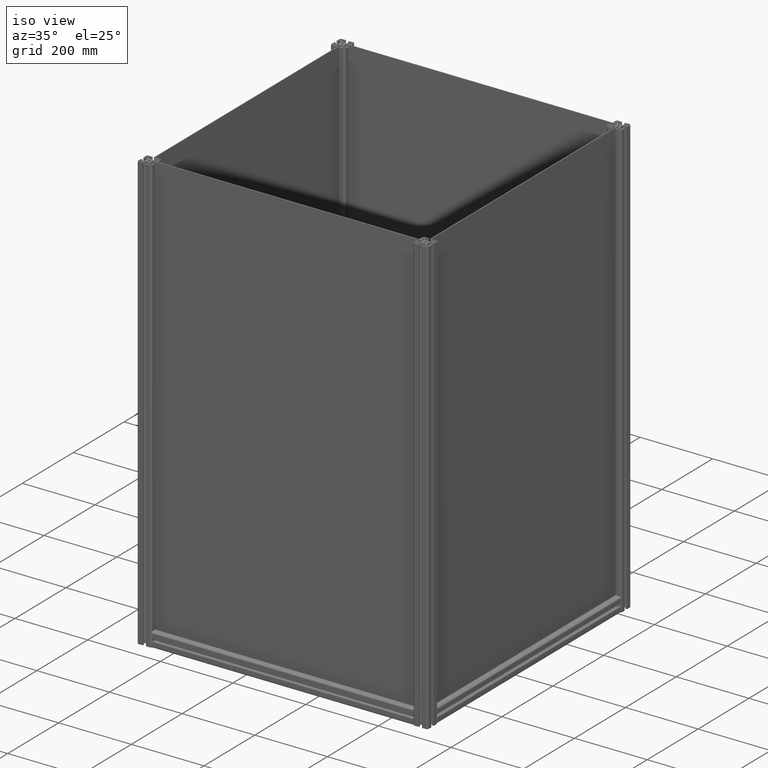
[diagram: clean part render]
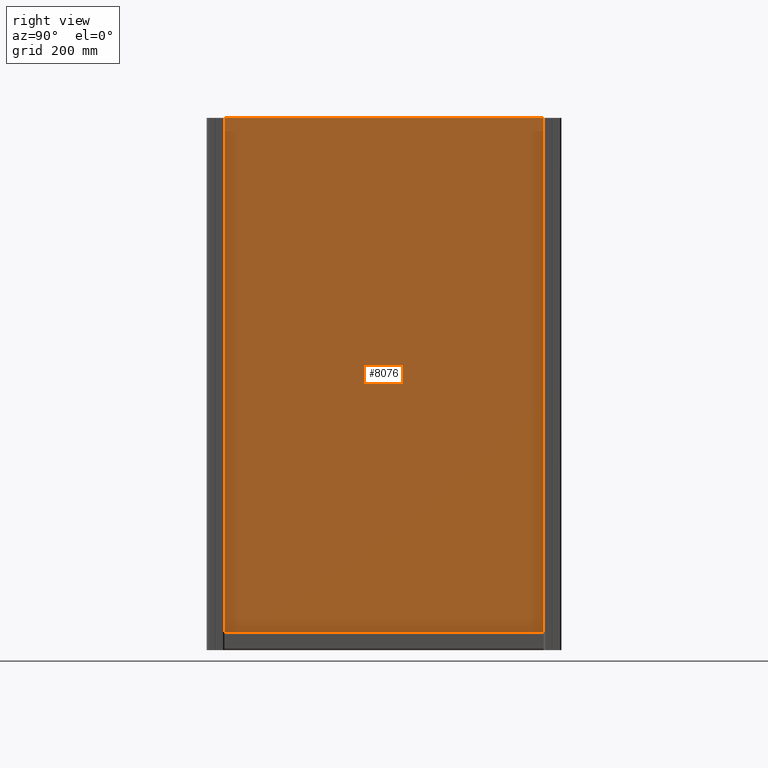
[diagram: tour spotlight — one face highlighted and labeled with its STEP entity id]
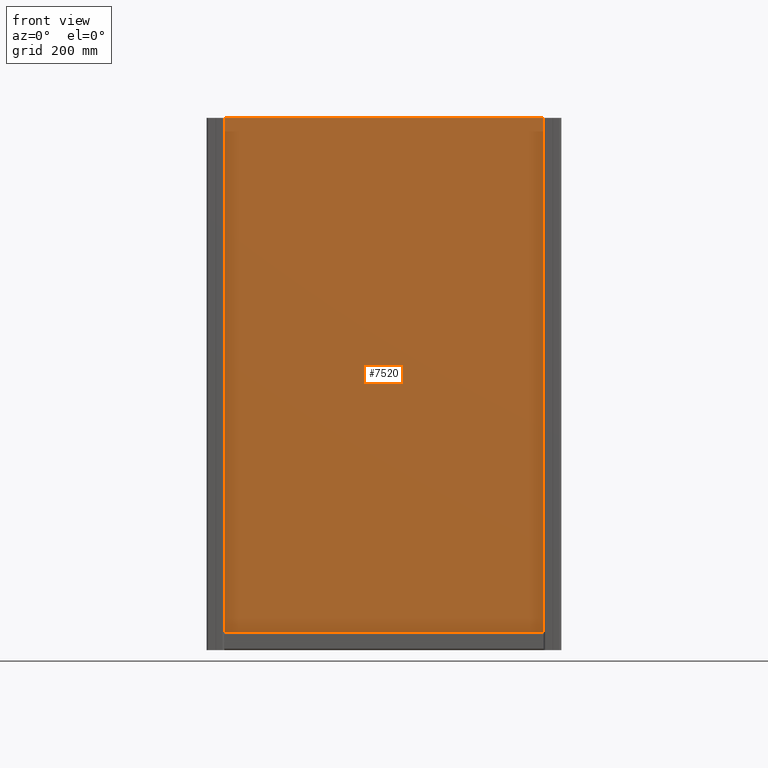
[diagram: tour spotlight — one face highlighted and labeled with its STEP entity id]
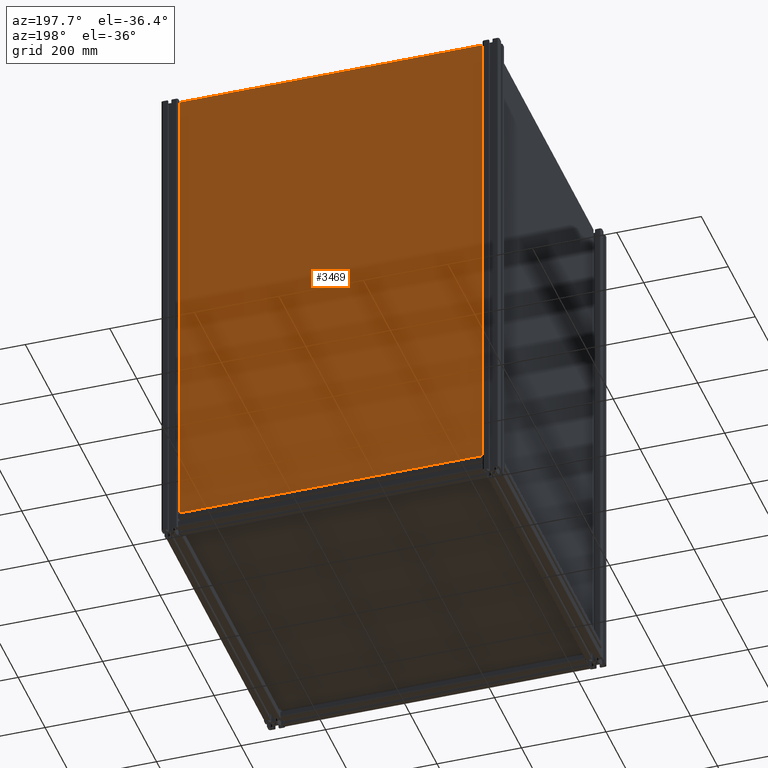
[diagram: tour spotlight — one face highlighted and labeled with its STEP entity id]
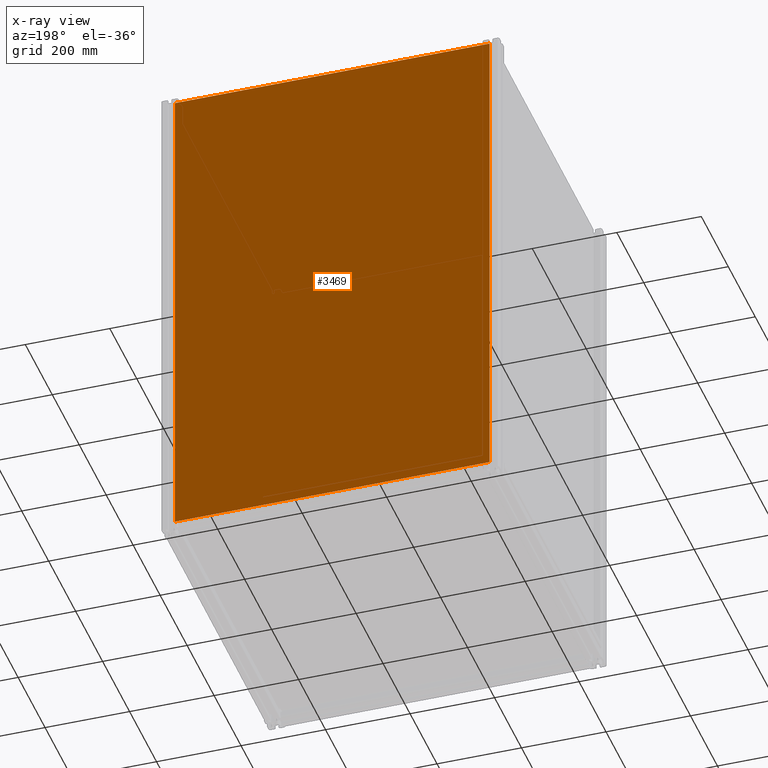
[diagram: x-ray of the same camera — body ghosted, this tour face saturated]
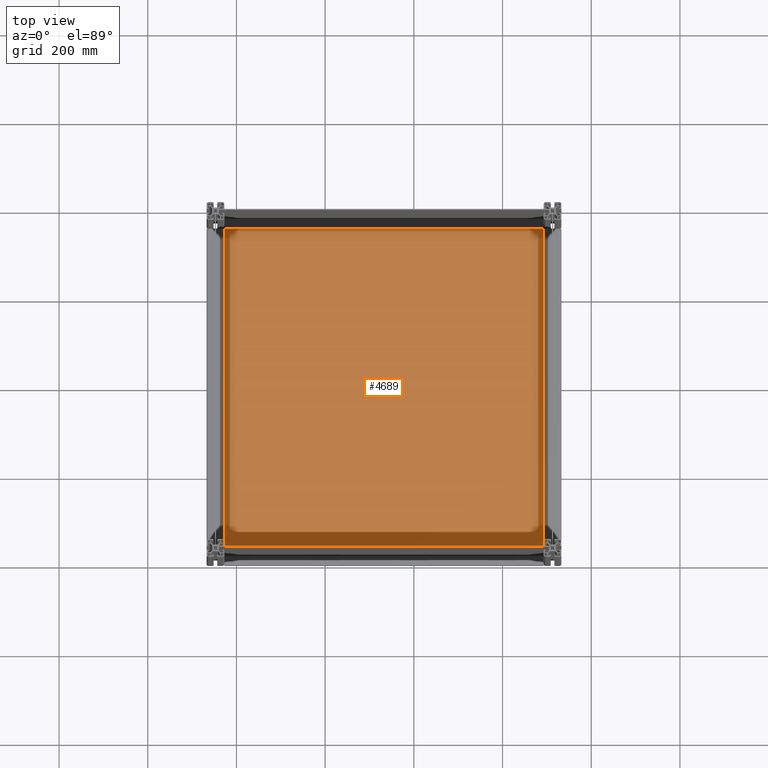
[diagram: tour spotlight — one face highlighted and labeled with its STEP entity id]
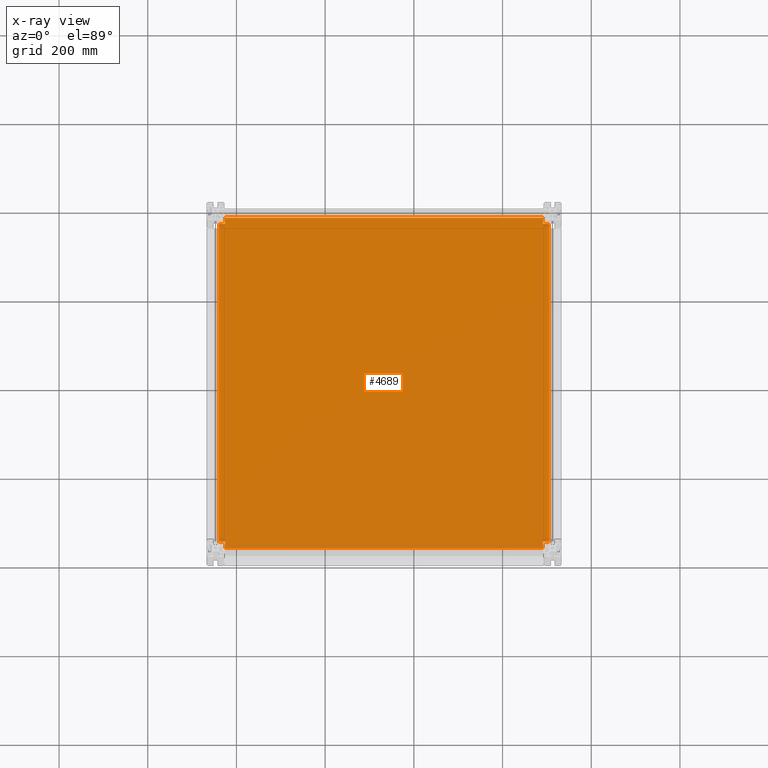
[diagram: x-ray of the same camera — body ghosted, this tour face saturated]
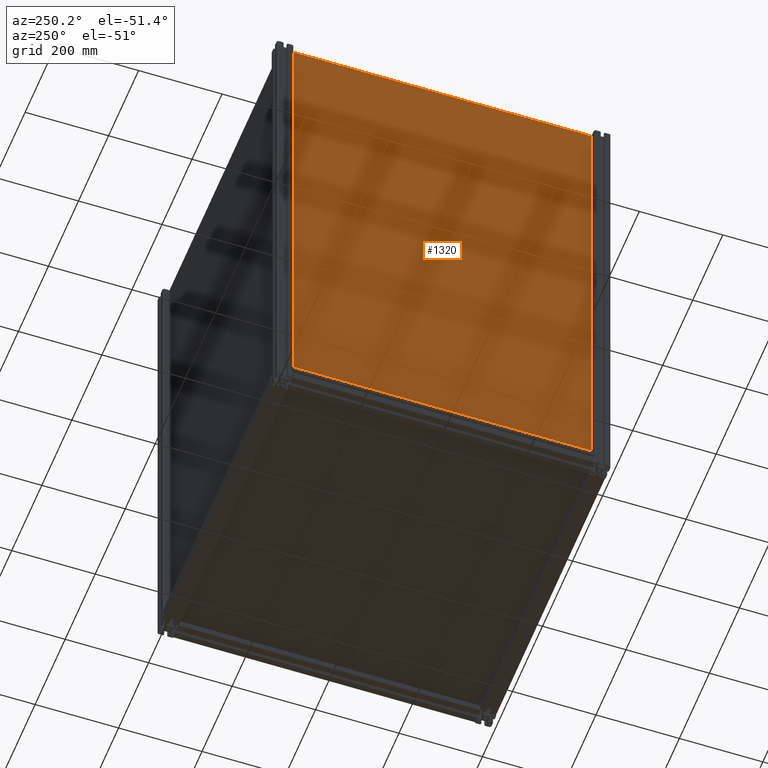
[diagram: tour spotlight — one face highlighted and labeled with its STEP entity id]
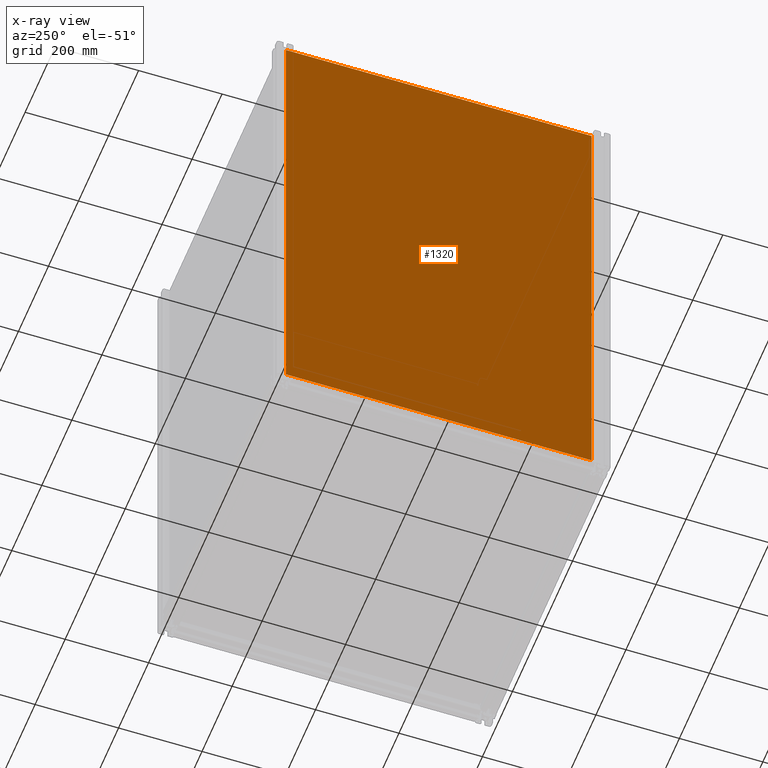
[diagram: x-ray of the same camera — body ghosted, this tour face saturated]
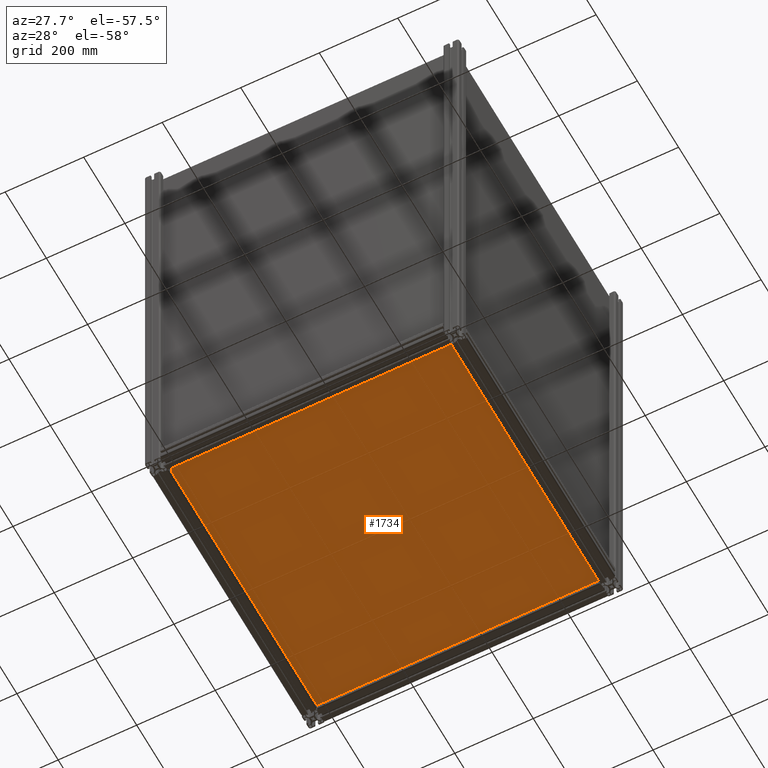
[diagram: tour spotlight — one face highlighted and labeled with its STEP entity id]
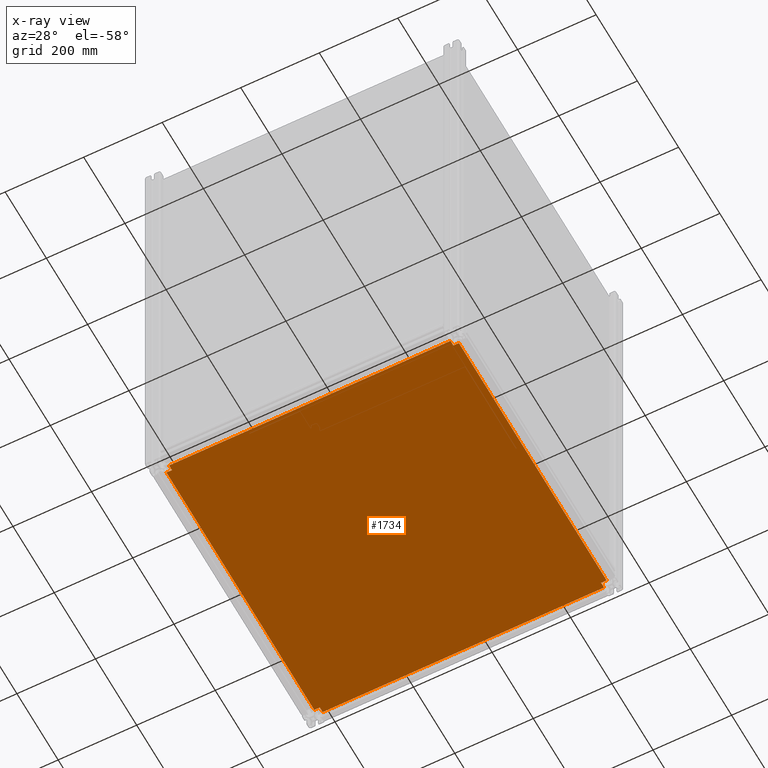
[diagram: x-ray of the same camera — body ghosted, this tour face saturated]
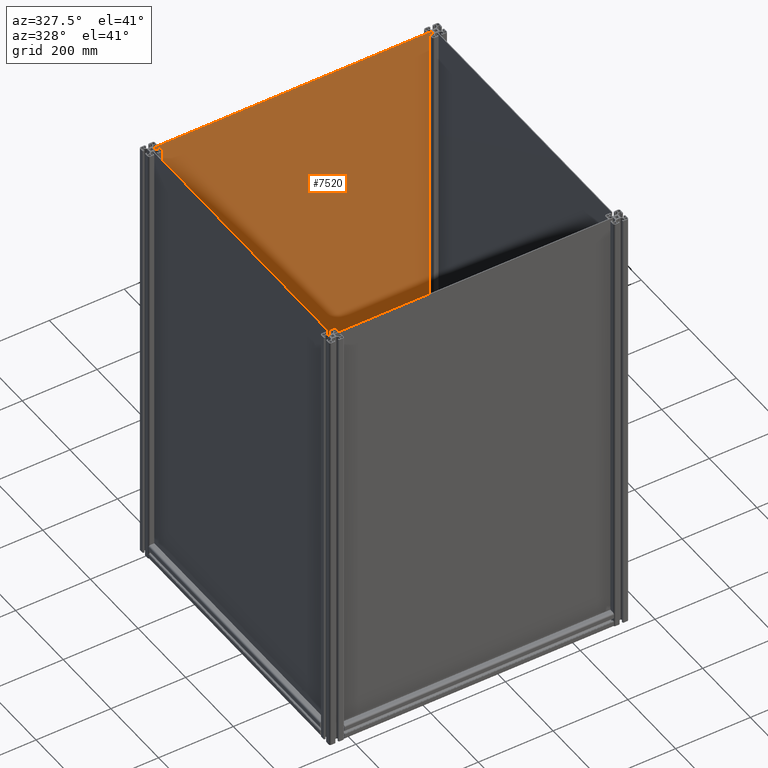
[diagram: tour spotlight — one face highlighted and labeled with its STEP entity id]
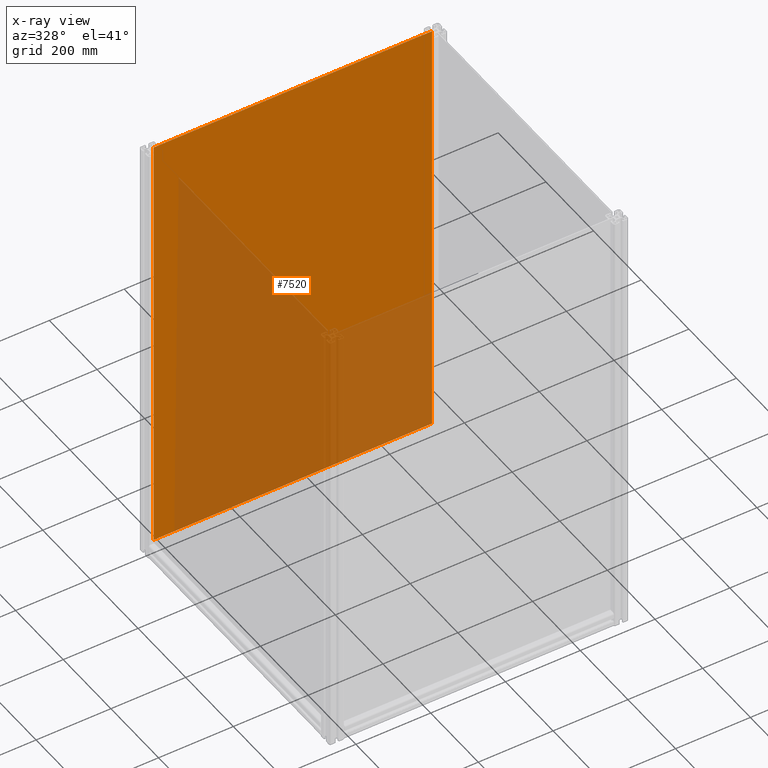
[diagram: x-ray of the same camera — body ghosted, this tour face saturated]
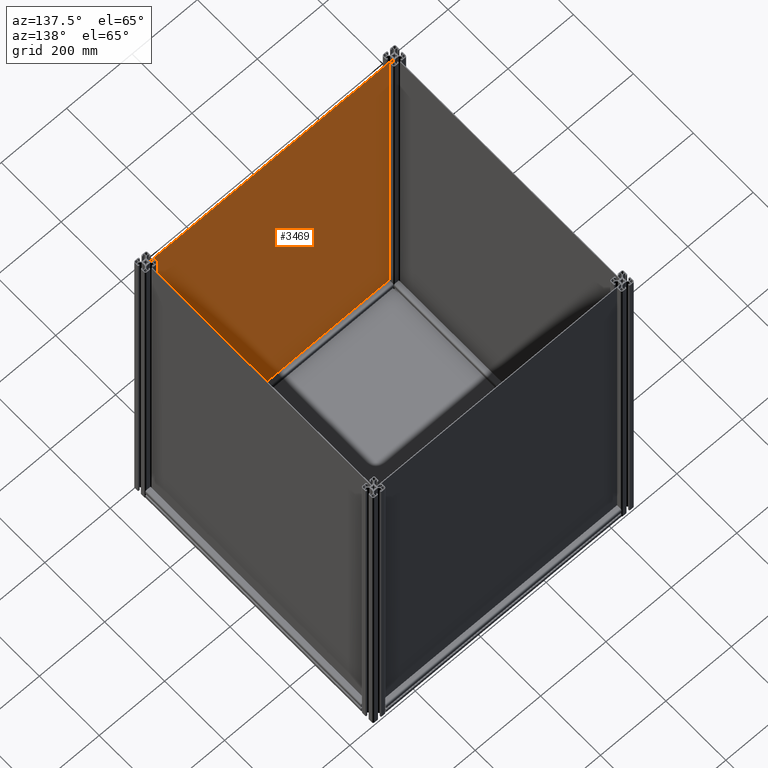
[diagram: tour spotlight — one face highlighted and labeled with its STEP entity id]
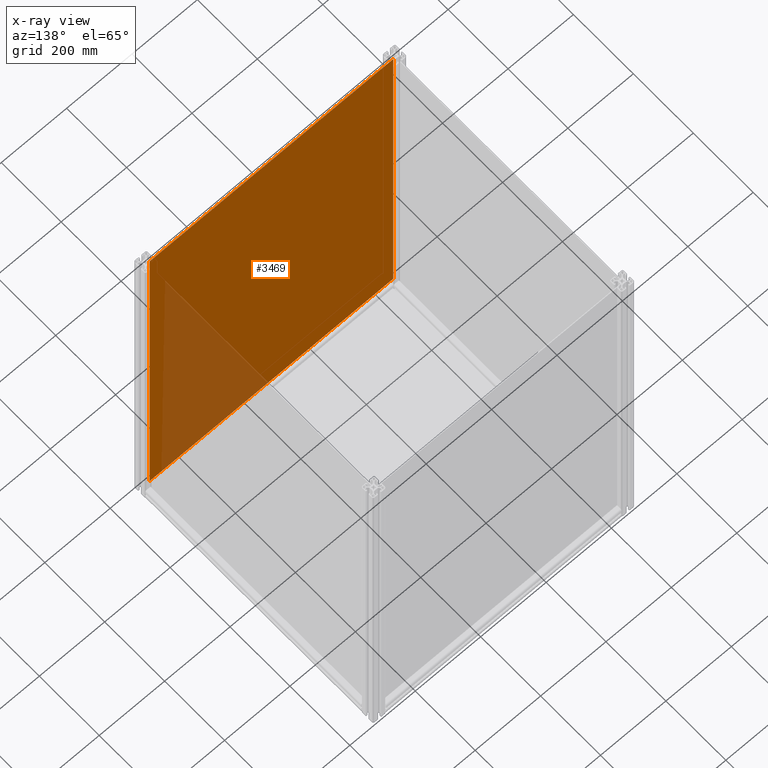
[diagram: x-ray of the same camera — body ghosted, this tour face saturated]
A machine part: a face-by-face anatomy tour. The part has 1230 B-rep faces; the first image is the clean iso view, then the 8 largest visible faces are spotlighted one at a time (largest first), each with its STEP entity span.

Face 1 — right view, entity #8076. In plain terms, the highlighted planar face has unit normal (1, 0, 0).
Definition (entity closure, byte-faithful):
#271 = DIRECTION ( 'NONE',  ( -1.420449110318777311E-16, 1.000000000000000000, -0.000000000000000000 ) ) ;
#549 = VERTEX_POINT ( 'NONE', #7452 ) ;
#635 = EDGE_CURVE ( 'NONE', #3015, #1391, #6547, .T. ) ;
#698 = DIRECTION ( 'NONE',  ( -1.000000000000000000, 0.000000000000000000, 0.000000000000000000 ) ) ;
#891 = DIRECTION ( 'NONE',  ( 0.000000000000000000, 0.000000000000000000, 1.000000000000000000 ) ) ;
#1391 = VERTEX_POINT ( 'NONE', #1394 ) ;
#1394 = CARTESIAN_POINT ( 'NONE',  ( -600.7269624573376632, -914.5269624573375040, 0.000000000000000000 ) ) ;
#1456 = CARTESIAN_POINT ( 'NONE',  ( 131.6730375426620299, 257.8730375426625301, 0.000000000000000000 ) ) ;
#1795 = EDGE_CURVE ( 'NONE', #9516, #3015, #10197, .T. ) ;
#1970 = CARTESIAN_POINT ( 'NONE',  ( -600.7269624573378906, 257.8730375426625301, 0.000000000000000000 ) ) ;
#2233 = CARTESIAN_POINT ( 'NONE',  ( 0.000000000000000000, 0.000000000000000000, 0.000000000000000000 ) ) ;
#2479 = VECTOR ( 'NONE', #698, 1000.000000000000000 ) ;
#2832 = VECTOR ( 'NONE', #271, 1000.000000000000000 ) ;
#3015 = VERTEX_POINT ( 'NONE', #1970 ) ;
#3853 = DIRECTION ( 'NONE',  ( 1.000000000000000000, 0.000000000000000000, 0.000000000000000000 ) ) ;
#4068 = ORIENTED_EDGE ( 'NONE', *, *, #5839, .T. ) ;
#4228 = AXIS2_PLACEMENT_3D ( 'NONE', #2233, #891, #10353 ) ;
#4927 = ORIENTED_EDGE ( 'NONE', *, *, #635, .T. ) ;
#5795 = CARTESIAN_POINT ( 'NONE',  ( 131.6730375426620299, 257.8730375426625301, 0.000000000000000000 ) ) ;
#5839 = EDGE_CURVE ( 'NONE', #1391, #549, #8108, .T. ) ;
#5985 = LINE ( 'NONE', #5795, #2832 ) ;
#6504 = FACE_OUTER_BOUND ( 'NONE', #10199, .T. ) ;
#6547 = LINE ( 'NONE', #9318, #10316 ) ;
#7343 = ORIENTED_EDGE ( 'NONE', *, *, #1795, .T. ) ;
#7452 = CARTESIAN_POINT ( 'NONE',  ( 131.6730375426621720, -914.5269624573375040, 0.000000000000000000 ) ) ;
#8076 = ADVANCED_FACE ( 'NONE', ( #6504 ), #11366, .T. ) ;
#8108 = LINE ( 'NONE', #8212, #8307 ) ;
#8212 = CARTESIAN_POINT ( 'NONE',  ( -600.7269624573376632, -914.5269624573375040, 0.000000000000000000 ) ) ;
#8261 = DIRECTION ( 'NONE',  ( 0.000000000000000000, -1.000000000000000000, 0.000000000000000000 ) ) ;
#8307 = VECTOR ( 'NONE', #3853, 1000.000000000000000 ) ;
#8782 = EDGE_CURVE ( 'NONE', #549, #9516, #5985, .T. ) ;
#8805 = ORIENTED_EDGE ( 'NONE', *, *, #8782, .T. ) ;
#8831 = CARTESIAN_POINT ( 'NONE',  ( -600.7269624573378906, 257.8730375426625301, 0.000000000000000000 ) ) ;
#9318 = CARTESIAN_POINT ( 'NONE',  ( -600.7269624573378906, 257.8730375426625301, 0.000000000000000000 ) ) ;
#9516 = VERTEX_POINT ( 'NONE', #1456 ) ;
#10197 = LINE ( 'NONE', #8831, #2479 ) ;
#10199 = EDGE_LOOP ( 'NONE', ( #8805, #7343, #4927, #4068 ) ) ;
#10316 = VECTOR ( 'NONE', #8261, 1000.000000000000000 ) ;
#10353 = DIRECTION ( 'NONE',  ( 1.000000000000000000, 0.000000000000000000, 0.000000000000000000 ) ) ;
#11366 = PLANE ( 'NONE',  #4228 ) ;

Face 2 — front view, entity #7520. In plain terms, the highlighted planar face has unit normal (0, 1, 0).
Definition (entity closure, byte-faithful):
#217 = LINE ( 'NONE', #733, #3841 ) ;
#250 = VERTEX_POINT ( 'NONE', #9389 ) ;
#277 = LINE ( 'NONE', #6986, #7975 ) ;
#733 = CARTESIAN_POINT ( 'NONE',  ( -600.7269624573378906, 257.8730375426625301, -2.000000000000000000 ) ) ;
#1104 = DIRECTION ( 'NONE',  ( -1.117974313196651756E-16, 1.000000000000000000, 0.000000000000000000 ) ) ;
#1805 = CARTESIAN_POINT ( 'NONE',  ( -773.1269624573380952, 257.8730375426625301, -2.000000000000000000 ) ) ;
#2817 = LINE ( 'NONE', #4431, #6685 ) ;
#2818 = VERTEX_POINT ( 'NONE', #1805 ) ;
#2831 = DIRECTION ( 'NONE',  ( 9.469660735458516229E-17, 1.000000000000000000, -0.000000000000000000 ) ) ;
#2913 = EDGE_CURVE ( 'NONE', #250, #6125, #277, .T. ) ;
#3340 = ORIENTED_EDGE ( 'NONE', *, *, #7710, .T. ) ;
#3656 = CARTESIAN_POINT ( 'NONE',  ( -28.32696245733819751, 257.8730375426625301, -2.000000000000000000 ) ) ;
#3841 = VECTOR ( 'NONE', #6899, 1000.000000000000000 ) ;
#4431 = CARTESIAN_POINT ( 'NONE',  ( -773.1269624573380952, 257.8730375426625301, -2.000000000000000000 ) ) ;
#4532 = EDGE_CURVE ( 'NONE', #250, #8589, #6442, .T. ) ;
#4753 = AXIS2_PLACEMENT_3D ( 'NONE', #7674, #8602, #11416 ) ;
#5870 = PLANE ( 'NONE',  #4753 ) ;
#6125 = VERTEX_POINT ( 'NONE', #6248 ) ;
#6248 = CARTESIAN_POINT ( 'NONE',  ( -773.1269624573382089, -914.5269624573375040, -2.000000000000000000 ) ) ;
#6442 = LINE ( 'NONE', #6676, #10464 ) ;
#6676 = CARTESIAN_POINT ( 'NONE',  ( -28.32696245733819751, 257.8730375426625301, -2.000000000000000000 ) ) ;
#6685 = VECTOR ( 'NONE', #2831, 1000.000000000000000 ) ;
#6899 = DIRECTION ( 'NONE',  ( -1.000000000000000000, 0.000000000000000000, 0.000000000000000000 ) ) ;
#6986 = CARTESIAN_POINT ( 'NONE',  ( -28.32696245733834672, -914.5269624573375040, -2.000000000000000000 ) ) ;
#7190 = ORIENTED_EDGE ( 'NONE', *, *, #9233, .F. ) ;
#7520 = ADVANCED_FACE ( 'NONE', ( #10209 ), #5870, .F. ) ;
#7674 = CARTESIAN_POINT ( 'NONE',  ( 0.000000000000000000, 0.000000000000000000, -2.000000000000000000 ) ) ;
#7710 = EDGE_CURVE ( 'NONE', #6125, #2818, #2817, .T. ) ;
#7871 = DIRECTION ( 'NONE',  ( -1.000000000000000000, 0.000000000000000000, 0.000000000000000000 ) ) ;
#7975 = VECTOR ( 'NONE', #7871, 1000.000000000000000 ) ;
#8003 = ORIENTED_EDGE ( 'NONE', *, *, #4532, .F. ) ;
#8412 = ORIENTED_EDGE ( 'NONE', *, *, #2913, .T. ) ;
#8589 = VERTEX_POINT ( 'NONE', #3656 ) ;
#8602 = DIRECTION ( 'NONE',  ( 0.000000000000000000, 0.000000000000000000, 1.000000000000000000 ) ) ;
#9233 = EDGE_CURVE ( 'NONE', #8589, #2818, #217, .T. ) ;
#9389 = CARTESIAN_POINT ( 'NONE',  ( -28.32696245733834672, -914.5269624573375040, -2.000000000000000000 ) ) ;
#9766 = EDGE_LOOP ( 'NONE', ( #3340, #7190, #8003, #8412 ) ) ;
#10209 = FACE_OUTER_BOUND ( 'NONE', #9766, .T. ) ;
#10464 = VECTOR ( 'NONE', #1104, 1000.000000000000000 ) ;
#11416 = DIRECTION ( 'NONE',  ( 1.000000000000000000, 0.000000000000000000, 0.000000000000000000 ) ) ;

Face 3 — auxiliary view, entity #3469. An x-ray twin of the same camera follows (body ghosted, this face saturated) — the face is partly hidden behind the body. In plain terms, the highlighted planar face has unit normal (0, 1, 0).
Definition (entity closure, byte-faithful):
#433 = CARTESIAN_POINT ( 'NONE',  ( -28.32696245733819751, 257.8730375426625301, 0.000000000000000000 ) ) ;
#550 = CARTESIAN_POINT ( 'NONE',  ( -773.1269624573380952, 257.8730375426625301, 0.000000000000000000 ) ) ;
#679 = DIRECTION ( 'NONE',  ( 9.469660735458516229E-17, 1.000000000000000000, -0.000000000000000000 ) ) ;
#845 = LINE ( 'NONE', #6590, #4607 ) ;
#1026 = EDGE_CURVE ( 'NONE', #8205, #9125, #6080, .T. ) ;
#1235 = EDGE_CURVE ( 'NONE', #5430, #5006, #8832, .T. ) ;
#3026 = DIRECTION ( 'NONE',  ( 1.000000000000000000, 0.000000000000000000, 0.000000000000000000 ) ) ;
#3102 = VECTOR ( 'NONE', #679, 1000.000000000000000 ) ;
#3109 = PLANE ( 'NONE',  #4185 ) ;
#3254 = CARTESIAN_POINT ( 'NONE',  ( -28.32696245733834672, -914.5269624573375040, 0.000000000000000000 ) ) ;
#3397 = ORIENTED_EDGE ( 'NONE', *, *, #1235, .T. ) ;
#3469 = ADVANCED_FACE ( 'NONE', ( #5079 ), #3109, .T. ) ;
#4185 = AXIS2_PLACEMENT_3D ( 'NONE', #5052, #9201, #3026 ) ;
#4242 = ORIENTED_EDGE ( 'NONE', *, *, #8551, .T. ) ;
#4607 = VECTOR ( 'NONE', #8363, 1000.000000000000000 ) ;
#4768 = EDGE_CURVE ( 'NONE', #9125, #5006, #10708, .T. ) ;
#4808 = CARTESIAN_POINT ( 'NONE',  ( -773.1269624573382089, -914.5269624573375040, 0.000000000000000000 ) ) ;
#4823 = DIRECTION ( 'NONE',  ( -1.000000000000000000, 0.000000000000000000, 0.000000000000000000 ) ) ;
#4959 = DIRECTION ( 'NONE',  ( -1.000000000000000000, 0.000000000000000000, 0.000000000000000000 ) ) ;
#4975 = VECTOR ( 'NONE', #4823, 1000.000000000000000 ) ;
#5006 = VERTEX_POINT ( 'NONE', #550 ) ;
#5052 = CARTESIAN_POINT ( 'NONE',  ( 0.000000000000000000, 0.000000000000000000, 0.000000000000000000 ) ) ;
#5079 = FACE_OUTER_BOUND ( 'NONE', #5478, .T. ) ;
#5430 = VERTEX_POINT ( 'NONE', #433 ) ;
#5478 = EDGE_LOOP ( 'NONE', ( #3397, #8640, #11267, #4242 ) ) ;
#6080 = LINE ( 'NONE', #3254, #10078 ) ;
#6590 = CARTESIAN_POINT ( 'NONE',  ( -28.32696245733819751, 257.8730375426625301, 0.000000000000000000 ) ) ;
#7001 = CARTESIAN_POINT ( 'NONE',  ( -773.1269624573380952, 257.8730375426625301, 0.000000000000000000 ) ) ;
#7852 = CARTESIAN_POINT ( 'NONE',  ( -28.32696245733834672, -914.5269624573375040, 0.000000000000000000 ) ) ;
#8205 = VERTEX_POINT ( 'NONE', #7852 ) ;
#8363 = DIRECTION ( 'NONE',  ( -1.117974313196651756E-16, 1.000000000000000000, 0.000000000000000000 ) ) ;
#8496 = CARTESIAN_POINT ( 'NONE',  ( -600.7269624573378906, 257.8730375426625301, 0.000000000000000000 ) ) ;
#8551 = EDGE_CURVE ( 'NONE', #8205, #5430, #845, .T. ) ;
#8640 = ORIENTED_EDGE ( 'NONE', *, *, #4768, .F. ) ;
#8832 = LINE ( 'NONE', #8496, #4975 ) ;
#9125 = VERTEX_POINT ( 'NONE', #4808 ) ;
#9201 = DIRECTION ( 'NONE',  ( 0.000000000000000000, 0.000000000000000000, 1.000000000000000000 ) ) ;
#10078 = VECTOR ( 'NONE', #4959, 1000.000000000000000 ) ;
#10708 = LINE ( 'NONE', #7001, #3102 ) ;
#11267 = ORIENTED_EDGE ( 'NONE', *, *, #1026, .F. ) ;

Face 4 — top view, entity #4689. An x-ray twin of the same camera follows (body ghosted, this face saturated) — the face is partly hidden behind the body. In plain terms, the highlighted planar face has unit normal (-0, 0, -1).
Definition (entity closure, byte-faithful):
#15 = CARTESIAN_POINT ( 'NONE',  ( 130.0730375426620355, 0.000000000000000000, -2.000000000000000000 ) ) ;
#104 = EDGE_CURVE ( 'NONE', #4687, #7196, #9614, .T. ) ;
#340 = EDGE_CURVE ( 'NONE', #5323, #8373, #6188, .T. ) ;
#727 = DIRECTION ( 'NONE',  ( 0.000000000000000000, -1.000000000000000000, 0.000000000000000000 ) ) ;
#792 = LINE ( 'NONE', #2463, #8488 ) ;
#810 = VECTOR ( 'NONE', #2681, 1000.000000000000000 ) ;
#1013 = DIRECTION ( 'NONE',  ( -1.000000000000000000, 0.000000000000000000, 0.000000000000000000 ) ) ;
#1321 = CARTESIAN_POINT ( 'NONE',  ( -586.7269624573378906, -472.9269624573379929, -2.000000000000000000 ) ) ;
#1620 = ORIENTED_EDGE ( 'NONE', *, *, #340, .T. ) ;
#1812 = EDGE_CURVE ( 'NONE', #9081, #1836, #6999, .T. ) ;
#1833 = VERTEX_POINT ( 'NONE', #6108 ) ;
#1836 = VERTEX_POINT ( 'NONE', #8752 ) ;
#1934 = ORIENTED_EDGE ( 'NONE', *, *, #11270, .F. ) ;
#2319 = CARTESIAN_POINT ( 'NONE',  ( 130.0730375426620355, -472.9269624573373676, -2.000000000000000000 ) ) ;
#2429 = CARTESIAN_POINT ( 'NONE',  ( 144.0730375426620355, -472.9269624573373676, -2.000000000000001776 ) ) ;
#2463 = CARTESIAN_POINT ( 'NONE',  ( 0.000000000000000000, 243.8730375426625301, -2.000000000000000000 ) ) ;
#2547 = ORIENTED_EDGE ( 'NONE', *, *, #11229, .T. ) ;
#2615 = DIRECTION ( 'NONE',  ( 0.000000000000000000, 0.000000000000000000, 1.000000000000000000 ) ) ;
#2681 = DIRECTION ( 'NONE',  ( -1.000000000000000000, -0.000000000000000000, 0.000000000000000000 ) ) ;
#2775 = CARTESIAN_POINT ( 'NONE',  ( 0.000000000000000000, -472.9269624573373676, -2.000000000000000000 ) ) ;
#2776 = CARTESIAN_POINT ( 'NONE',  ( -586.7269624573378906, 257.8730375426625301, -2.000000000000000000 ) ) ;
#3080 = VERTEX_POINT ( 'NONE', #4921 ) ;
#3291 = EDGE_CURVE ( 'NONE', #10864, #5784, #8518, .T. ) ;
#3572 = PLANE ( 'NONE',  #4962 ) ;
#3788 = CARTESIAN_POINT ( 'NONE',  ( 130.0730375426620355, -486.9269624573373676, -2.000000000000000000 ) ) ;
#3823 = VECTOR ( 'NONE', #4934, 1000.000000000000000 ) ;
#3847 = DIRECTION ( 'NONE',  ( 0.000000000000000000, -1.000000000000000000, 0.000000000000000000 ) ) ;
#3897 = LINE ( 'NONE', #9232, #3823 ) ;
#3992 = VECTOR ( 'NONE', #8141, 1000.000000000000000 ) ;
#4151 = EDGE_CURVE ( 'NONE', #3080, #5784, #9757, .T. ) ;
#4214 = LINE ( 'NONE', #9850, #8081 ) ;
#4653 = CARTESIAN_POINT ( 'NONE',  ( -586.7269624573378906, 0.000000000000000000, -2.000000000000000000 ) ) ;
#4687 = VERTEX_POINT ( 'NONE', #11253 ) ;
#4689 = ADVANCED_FACE ( 'NONE', ( #10192 ), #3572, .F. ) ;
#4921 = CARTESIAN_POINT ( 'NONE',  ( -600.7269624573378906, 243.8730375426625301, -2.000000000000000000 ) ) ;
#4934 = DIRECTION ( 'NONE',  ( 0.000000000000000000, 1.000000000000000000, 0.000000000000000000 ) ) ;
#4962 = AXIS2_PLACEMENT_3D ( 'NONE', #5132, #2615, #9423 ) ;
#5047 = LINE ( 'NONE', #4653, #5365 ) ;
#5077 = DIRECTION ( 'NONE',  ( 0.000000000000000000, -1.000000000000000000, 0.000000000000000000 ) ) ;
#5132 = CARTESIAN_POINT ( 'NONE',  ( 0.000000000000000000, 0.000000000000000000, -2.000000000000000000 ) ) ;
#5323 = VERTEX_POINT ( 'NONE', #2319 ) ;
#5365 = VECTOR ( 'NONE', #5520, 1000.000000000000000 ) ;
#5410 = ORIENTED_EDGE ( 'NONE', *, *, #11454, .T. ) ;
#5520 = DIRECTION ( 'NONE',  ( 0.000000000000000000, 1.000000000000000000, 0.000000000000000000 ) ) ;
#5560 = EDGE_CURVE ( 'NONE', #3080, #9427, #7933, .T. ) ;
#5708 = ORIENTED_EDGE ( 'NONE', *, *, #6599, .T. ) ;
#5715 = VECTOR ( 'NONE', #8936, 1000.000000000000000 ) ;
#5784 = VERTEX_POINT ( 'NONE', #7650 ) ;
#6108 = CARTESIAN_POINT ( 'NONE',  ( -586.7269624573378906, -486.9269624573379929, -2.000000000000000000 ) ) ;
#6109 = VECTOR ( 'NONE', #727, 1000.000000000000000 ) ;
#6188 = LINE ( 'NONE', #15, #6109 ) ;
#6196 = VECTOR ( 'NONE', #3847, 1000.000000000000000 ) ;
#6261 = ORIENTED_EDGE ( 'NONE', *, *, #104, .T. ) ;
#6599 = EDGE_CURVE ( 'NONE', #1833, #10864, #5047, .T. ) ;
#6979 = VECTOR ( 'NONE', #5077, 1000.000000000000000 ) ;
#6999 = LINE ( 'NONE', #10678, #6979 ) ;
#7196 = VERTEX_POINT ( 'NONE', #2429 ) ;
#7616 = CARTESIAN_POINT ( 'NONE',  ( 0.000000000000000000, -472.9269624573379929, -2.000000000000000000 ) ) ;
#7650 = CARTESIAN_POINT ( 'NONE',  ( -600.7269624573378906, -472.9269624573379929, -2.000000000000000000 ) ) ;
#7853 = CARTESIAN_POINT ( 'NONE',  ( 0.000000000000000000, 243.8730375426625301, -2.000000000000000000 ) ) ;
#7916 = LINE ( 'NONE', #10148, #11526 ) ;
#7933 = LINE ( 'NONE', #7853, #3992 ) ;
#8081 = VECTOR ( 'NONE', #1013, 1000.000000000000000 ) ;
#8141 = DIRECTION ( 'NONE',  ( 1.000000000000000000, 0.000000000000000000, -0.000000000000000000 ) ) ;
#8199 = EDGE_CURVE ( 'NONE', #7196, #5323, #8582, .T. ) ;
#8206 = CARTESIAN_POINT ( 'NONE',  ( -600.7269624573378906, 257.8730375426625301, -2.000000000000000000 ) ) ;
#8373 = VERTEX_POINT ( 'NONE', #3788 ) ;
#8488 = VECTOR ( 'NONE', #10943, 1000.000000000000000 ) ;
#8518 = LINE ( 'NONE', #7616, #8651 ) ;
#8582 = LINE ( 'NONE', #2775, #810 ) ;
#8651 = VECTOR ( 'NONE', #9310, 1000.000000000000000 ) ;
#8705 = EDGE_LOOP ( 'NONE', ( #9214, #10530, #5410, #6261, #9859, #1620, #1934, #5708, #9920, #9740, #9810, #2547 ) ) ;
#8752 = CARTESIAN_POINT ( 'NONE',  ( 130.0730375426619787, 243.8730375426625301, -2.000000000000000000 ) ) ;
#8928 = CARTESIAN_POINT ( 'NONE',  ( -586.7269624573378906, 243.8730375426625301, -2.000000000000000000 ) ) ;
#8936 = DIRECTION ( 'NONE',  ( 7.453162087977689467E-17, -1.000000000000000000, 0.000000000000000000 ) ) ;
#9081 = VERTEX_POINT ( 'NONE', #10008 ) ;
#9214 = ORIENTED_EDGE ( 'NONE', *, *, #11377, .F. ) ;
#9232 = CARTESIAN_POINT ( 'NONE',  ( -586.7269624573378906, 0.000000000000000000, -2.000000000000000000 ) ) ;
#9310 = DIRECTION ( 'NONE',  ( -1.000000000000000000, -0.000000000000000000, 0.000000000000000000 ) ) ;
#9397 = VERTEX_POINT ( 'NONE', #2776 ) ;
#9423 = DIRECTION ( 'NONE',  ( 1.000000000000000000, 0.000000000000000000, 0.000000000000000000 ) ) ;
#9427 = VERTEX_POINT ( 'NONE', #8928 ) ;
#9614 = LINE ( 'NONE', #9800, #5715 ) ;
#9740 = ORIENTED_EDGE ( 'NONE', *, *, #4151, .F. ) ;
#9757 = LINE ( 'NONE', #8206, #6196 ) ;
#9800 = CARTESIAN_POINT ( 'NONE',  ( 144.0730375426619787, 257.8730375426625301, -2.000000000000001776 ) ) ;
#9810 = ORIENTED_EDGE ( 'NONE', *, *, #5560, .T. ) ;
#9850 = CARTESIAN_POINT ( 'NONE',  ( -600.7269624573378906, 257.8730375426625301, -2.000000000000000000 ) ) ;
#9859 = ORIENTED_EDGE ( 'NONE', *, *, #8199, .T. ) ;
#9920 = ORIENTED_EDGE ( 'NONE', *, *, #3291, .T. ) ;
#10008 = CARTESIAN_POINT ( 'NONE',  ( 130.0730375426619787, 257.8730375426625301, -2.000000000000000000 ) ) ;
#10148 = CARTESIAN_POINT ( 'NONE',  ( -600.7269624573378906, -486.9269624573379929, -2.000000000000000000 ) ) ;
#10192 = FACE_OUTER_BOUND ( 'NONE', #8705, .T. ) ;
#10530 = ORIENTED_EDGE ( 'NONE', *, *, #1812, .T. ) ;
#10678 = CARTESIAN_POINT ( 'NONE',  ( 130.0730375426619787, 0.000000000000000000, -2.000000000000000000 ) ) ;
#10864 = VERTEX_POINT ( 'NONE', #1321 ) ;
#10943 = DIRECTION ( 'NONE',  ( 1.000000000000000000, 0.000000000000000000, -0.000000000000000000 ) ) ;
#11229 = EDGE_CURVE ( 'NONE', #9427, #9397, #3897, .T. ) ;
#11253 = CARTESIAN_POINT ( 'NONE',  ( 144.0730375426619787, 243.8730375426625301, -2.000000000000001776 ) ) ;
#11270 = EDGE_CURVE ( 'NONE', #1833, #8373, #7916, .T. ) ;
#11280 = DIRECTION ( 'NONE',  ( 1.000000000000000000, 0.000000000000000000, 0.000000000000000000 ) ) ;
#11377 = EDGE_CURVE ( 'NONE', #9081, #9397, #4214, .T. ) ;
#11454 = EDGE_CURVE ( 'NONE', #1836, #4687, #792, .T. ) ;
#11526 = VECTOR ( 'NONE', #11280, 1000.000000000000000 ) ;

Face 5 — auxiliary view, entity #1320. An x-ray twin of the same camera follows (body ghosted, this face saturated) — the face is partly hidden behind the body. In plain terms, the highlighted planar face has unit normal (1, 0, 0).
Definition (entity closure, byte-faithful):
#396 = LINE ( 'NONE', #958, #4448 ) ;
#958 = CARTESIAN_POINT ( 'NONE',  ( -600.7269624573378906, 257.8730375426625301, -2.000000000000000000 ) ) ;
#1125 = DIRECTION ( 'NONE',  ( 1.420449110318777311E-16, -1.000000000000000000, 0.000000000000000000 ) ) ;
#1320 = ADVANCED_FACE ( 'NONE', ( #8986 ), #2938, .F. ) ;
#1484 = VERTEX_POINT ( 'NONE', #4254 ) ;
#2275 = LINE ( 'NONE', #4627, #10015 ) ;
#2938 = PLANE ( 'NONE',  #6725 ) ;
#3020 = ORIENTED_EDGE ( 'NONE', *, *, #3101, .F. ) ;
#3101 = EDGE_CURVE ( 'NONE', #8472, #5989, #4404, .T. ) ;
#3784 = DIRECTION ( 'NONE',  ( 0.000000000000000000, -1.000000000000000000, 0.000000000000000000 ) ) ;
#4254 = CARTESIAN_POINT ( 'NONE',  ( 131.6730375426621720, -914.5269624573375040, -2.000000000000001776 ) ) ;
#4404 = LINE ( 'NONE', #4840, #8100 ) ;
#4448 = VECTOR ( 'NONE', #3784, 1000.000000000000000 ) ;
#4627 = CARTESIAN_POINT ( 'NONE',  ( 131.6730375426620299, 257.8730375426625301, -2.000000000000001776 ) ) ;
#4834 = EDGE_CURVE ( 'NONE', #1484, #8515, #10646, .T. ) ;
#4840 = CARTESIAN_POINT ( 'NONE',  ( -600.7269624573378906, 257.8730375426625301, -2.000000000000000000 ) ) ;
#5129 = CARTESIAN_POINT ( 'NONE',  ( -600.7269624573378906, 257.8730375426625301, -2.000000000000000000 ) ) ;
#5989 = VERTEX_POINT ( 'NONE', #5129 ) ;
#6383 = CARTESIAN_POINT ( 'NONE',  ( 0.000000000000000000, 0.000000000000000000, -2.000000000000000000 ) ) ;
#6478 = DIRECTION ( 'NONE',  ( 0.000000000000000000, 0.000000000000000000, 1.000000000000000000 ) ) ;
#6490 = EDGE_LOOP ( 'NONE', ( #3020, #8442, #7061, #11200 ) ) ;
#6725 = AXIS2_PLACEMENT_3D ( 'NONE', #6383, #6478, #10018 ) ;
#7061 = ORIENTED_EDGE ( 'NONE', *, *, #4834, .T. ) ;
#7349 = EDGE_CURVE ( 'NONE', #8472, #1484, #2275, .T. ) ;
#8100 = VECTOR ( 'NONE', #10223, 1000.000000000000000 ) ;
#8442 = ORIENTED_EDGE ( 'NONE', *, *, #7349, .T. ) ;
#8472 = VERTEX_POINT ( 'NONE', #10304 ) ;
#8515 = VERTEX_POINT ( 'NONE', #8584 ) ;
#8584 = CARTESIAN_POINT ( 'NONE',  ( -600.7269624573376632, -914.5269624573375040, -2.000000000000001776 ) ) ;
#8811 = CARTESIAN_POINT ( 'NONE',  ( -600.7269624573376632, -914.5269624573375040, -2.000000000000001776 ) ) ;
#8986 = FACE_OUTER_BOUND ( 'NONE', #6490, .T. ) ;
#9344 = EDGE_CURVE ( 'NONE', #5989, #8515, #396, .T. ) ;
#10015 = VECTOR ( 'NONE', #1125, 1000.000000000000000 ) ;
#10018 = DIRECTION ( 'NONE',  ( 1.000000000000000000, 0.000000000000000000, 0.000000000000000000 ) ) ;
#10223 = DIRECTION ( 'NONE',  ( -1.000000000000000000, 0.000000000000000000, 0.000000000000000000 ) ) ;
#10304 = CARTESIAN_POINT ( 'NONE',  ( 131.6730375426620299, 257.8730375426625301, -2.000000000000001776 ) ) ;
#10646 = LINE ( 'NONE', #8811, #11008 ) ;
#10744 = DIRECTION ( 'NONE',  ( -1.000000000000000000, 0.000000000000000000, 0.000000000000000000 ) ) ;
#11008 = VECTOR ( 'NONE', #10744, 1000.000000000000000 ) ;
#11200 = ORIENTED_EDGE ( 'NONE', *, *, #9344, .F. ) ;

Face 6 — auxiliary view, entity #1734. An x-ray twin of the same camera follows (body ghosted, this face saturated) — the face is partly hidden behind the body. In plain terms, the highlighted planar face has unit normal (-0, 0, -1).
Definition (entity closure, byte-faithful):
#72 = CARTESIAN_POINT ( 'NONE',  ( 130.0730375426619787, 243.8730375426625301, 0.000000000000000000 ) ) ;
#171 = CARTESIAN_POINT ( 'NONE',  ( 130.0730375426620355, -472.9269624573373676, 0.000000000000000000 ) ) ;
#234 = VECTOR ( 'NONE', #10214, 1000.000000000000000 ) ;
#269 = CARTESIAN_POINT ( 'NONE',  ( 130.0730375426620355, -472.9269624573373676, 0.000000000000000000 ) ) ;
#344 = DIRECTION ( 'NONE',  ( 1.000000000000000000, 0.000000000000000000, 0.000000000000000000 ) ) ;
#448 = CARTESIAN_POINT ( 'NONE',  ( -586.7269624573378906, 257.8730375426625301, 0.000000000000000000 ) ) ;
#527 = VECTOR ( 'NONE', #537, 1000.000000000000000 ) ;
#537 = DIRECTION ( 'NONE',  ( -1.000000000000000000, 0.000000000000000000, 0.000000000000000000 ) ) ;
#685 = ORIENTED_EDGE ( 'NONE', *, *, #8937, .T. ) ;
#725 = VERTEX_POINT ( 'NONE', #4004 ) ;
#1003 = CARTESIAN_POINT ( 'NONE',  ( 0.000000000000000000, 0.000000000000000000, 0.000000000000000000 ) ) ;
#1276 = CARTESIAN_POINT ( 'NONE',  ( -600.7269624573378906, 243.8730375426625301, 0.000000000000000000 ) ) ;
#1516 = EDGE_CURVE ( 'NONE', #8469, #4475, #10406, .T. ) ;
#1529 = CARTESIAN_POINT ( 'NONE',  ( -600.7269624573378906, -472.9269624573379929, 0.000000000000000000 ) ) ;
#1706 = EDGE_CURVE ( 'NONE', #10001, #3910, #6423, .T. ) ;
#1734 = ADVANCED_FACE ( 'NONE', ( #6399 ), #6280, .T. ) ;
#1765 = DIRECTION ( 'NONE',  ( 1.000000000000000000, 0.000000000000000000, 0.000000000000000000 ) ) ;
#1807 = ORIENTED_EDGE ( 'NONE', *, *, #9777, .T. ) ;
#1813 = DIRECTION ( 'NONE',  ( 0.000000000000000000, 0.000000000000000000, 1.000000000000000000 ) ) ;
#2059 = DIRECTION ( 'NONE',  ( 0.000000000000000000, -1.000000000000000000, 0.000000000000000000 ) ) ;
#2155 = VECTOR ( 'NONE', #8809, 1000.000000000000000 ) ;
#2299 = VECTOR ( 'NONE', #9170, 1000.000000000000000 ) ;
#2363 = ORIENTED_EDGE ( 'NONE', *, *, #3036, .T. ) ;
#2387 = DIRECTION ( 'NONE',  ( -0.000000000000000000, 1.000000000000000000, -0.000000000000000000 ) ) ;
#2773 = ORIENTED_EDGE ( 'NONE', *, *, #9072, .F. ) ;
#2900 = CARTESIAN_POINT ( 'NONE',  ( 144.0730375426619787, 257.8730375426625301, 0.000000000000000000 ) ) ;
#2973 = LINE ( 'NONE', #269, #6973 ) ;
#3036 = EDGE_CURVE ( 'NONE', #5748, #4078, #4173, .T. ) ;
#3179 = CARTESIAN_POINT ( 'NONE',  ( -600.7269624573378906, -486.9269624573379929, 0.000000000000000000 ) ) ;
#3203 = EDGE_CURVE ( 'NONE', #8469, #9643, #4847, .T. ) ;
#3285 = CARTESIAN_POINT ( 'NONE',  ( -586.7269624573378906, -486.9269624573379929, 0.000000000000000000 ) ) ;
#3527 = VECTOR ( 'NONE', #6048, 1000.000000000000000 ) ;
#3910 = VERTEX_POINT ( 'NONE', #7204 ) ;
#4004 = CARTESIAN_POINT ( 'NONE',  ( 130.0730375426619787, 243.8730375426625301, 0.000000000000000000 ) ) ;
#4078 = VERTEX_POINT ( 'NONE', #448 ) ;
#4168 = CARTESIAN_POINT ( 'NONE',  ( 130.0730375426619787, 257.8730375426625301, 0.000000000000000000 ) ) ;
#4173 = LINE ( 'NONE', #10130, #527 ) ;
#4202 = VECTOR ( 'NONE', #2059, 1000.000000000000000 ) ;
#4259 = VECTOR ( 'NONE', #9929, 1000.000000000000000 ) ;
#4292 = EDGE_LOOP ( 'NONE', ( #6005, #2363, #10117, #9461, #685, #5960, #6274, #10138, #2773, #11375, #1807, #9635 ) ) ;
#4339 = DIRECTION ( 'NONE',  ( 1.000000000000000000, 0.000000000000000000, 0.000000000000000000 ) ) ;
#4475 = VERTEX_POINT ( 'NONE', #10594 ) ;
#4759 = VERTEX_POINT ( 'NONE', #11398 ) ;
#4847 = LINE ( 'NONE', #8700, #5029 ) ;
#4943 = EDGE_CURVE ( 'NONE', #10563, #8126, #2973, .T. ) ;
#5029 = VECTOR ( 'NONE', #2387, 1000.000000000000000 ) ;
#5231 = CARTESIAN_POINT ( 'NONE',  ( -600.7269624573378906, 257.8730375426625301, 0.000000000000000000 ) ) ;
#5234 = EDGE_CURVE ( 'NONE', #725, #11215, #7388, .T. ) ;
#5748 = VERTEX_POINT ( 'NONE', #9273 ) ;
#5911 = LINE ( 'NONE', #7085, #2155 ) ;
#5960 = ORIENTED_EDGE ( 'NONE', *, *, #8539, .F. ) ;
#6005 = ORIENTED_EDGE ( 'NONE', *, *, #11209, .F. ) ;
#6048 = DIRECTION ( 'NONE',  ( 0.000000000000000000, -1.000000000000000000, 0.000000000000000000 ) ) ;
#6098 = CARTESIAN_POINT ( 'NONE',  ( -586.7269624573378906, -472.9269624573379929, 0.000000000000000000 ) ) ;
#6274 = ORIENTED_EDGE ( 'NONE', *, *, #3203, .F. ) ;
#6280 = PLANE ( 'NONE',  #10473 ) ;
#6399 = FACE_OUTER_BOUND ( 'NONE', #4292, .T. ) ;
#6423 = LINE ( 'NONE', #7533, #10377 ) ;
#6951 = CARTESIAN_POINT ( 'NONE',  ( 144.0730375426619787, 243.8730375426625301, 0.000000000000000000 ) ) ;
#6973 = VECTOR ( 'NONE', #8951, 1000.000000000000000 ) ;
#7085 = CARTESIAN_POINT ( 'NONE',  ( -586.7269624573378906, 257.8730375426625301, 0.000000000000000000 ) ) ;
#7204 = CARTESIAN_POINT ( 'NONE',  ( -586.7269624573378906, 243.8730375426625301, 0.000000000000000000 ) ) ;
#7294 = EDGE_CURVE ( 'NONE', #3910, #4078, #5911, .T. ) ;
#7388 = LINE ( 'NONE', #72, #11080 ) ;
#7496 = LINE ( 'NONE', #5231, #3527 ) ;
#7533 = CARTESIAN_POINT ( 'NONE',  ( -600.7269624573378906, 243.8730375426625301, 0.000000000000000000 ) ) ;
#7971 = LINE ( 'NONE', #4168, #4202 ) ;
#8078 = CARTESIAN_POINT ( 'NONE',  ( 144.0730375426620640, -472.9269624573373676, 0.000000000000000000 ) ) ;
#8126 = VERTEX_POINT ( 'NONE', #171 ) ;
#8210 = LINE ( 'NONE', #10177, #4259 ) ;
#8469 = VERTEX_POINT ( 'NONE', #3285 ) ;
#8539 = EDGE_CURVE ( 'NONE', #9643, #4759, #8740, .T. ) ;
#8700 = CARTESIAN_POINT ( 'NONE',  ( -586.7269624573378906, -472.9269624573379929, 0.000000000000000000 ) ) ;
#8740 = LINE ( 'NONE', #1529, #234 ) ;
#8809 = DIRECTION ( 'NONE',  ( -0.000000000000000000, 1.000000000000000000, -0.000000000000000000 ) ) ;
#8937 = EDGE_CURVE ( 'NONE', #10001, #4759, #7496, .T. ) ;
#8951 = DIRECTION ( 'NONE',  ( -1.000000000000000000, -0.000000000000000000, -0.000000000000000000 ) ) ;
#9072 = EDGE_CURVE ( 'NONE', #8126, #4475, #8210, .T. ) ;
#9170 = DIRECTION ( 'NONE',  ( -7.453162087977689467E-17, 1.000000000000000000, -0.000000000000000000 ) ) ;
#9273 = CARTESIAN_POINT ( 'NONE',  ( 130.0730375426619787, 257.8730375426625301, 0.000000000000000000 ) ) ;
#9323 = DIRECTION ( 'NONE',  ( 1.000000000000000000, 0.000000000000000000, 0.000000000000000000 ) ) ;
#9461 = ORIENTED_EDGE ( 'NONE', *, *, #1706, .F. ) ;
#9635 = ORIENTED_EDGE ( 'NONE', *, *, #5234, .F. ) ;
#9643 = VERTEX_POINT ( 'NONE', #6098 ) ;
#9777 = EDGE_CURVE ( 'NONE', #10563, #11215, #10210, .T. ) ;
#9929 = DIRECTION ( 'NONE',  ( 0.000000000000000000, -1.000000000000000000, 0.000000000000000000 ) ) ;
#10001 = VERTEX_POINT ( 'NONE', #1276 ) ;
#10117 = ORIENTED_EDGE ( 'NONE', *, *, #7294, .F. ) ;
#10130 = CARTESIAN_POINT ( 'NONE',  ( -600.7269624573378906, 257.8730375426625301, 0.000000000000000000 ) ) ;
#10138 = ORIENTED_EDGE ( 'NONE', *, *, #1516, .T. ) ;
#10177 = CARTESIAN_POINT ( 'NONE',  ( 130.0730375426620355, -472.9269624573373676, 0.000000000000000000 ) ) ;
#10210 = LINE ( 'NONE', #2900, #2299 ) ;
#10214 = DIRECTION ( 'NONE',  ( -1.000000000000000000, -0.000000000000000000, -0.000000000000000000 ) ) ;
#10377 = VECTOR ( 'NONE', #344, 1000.000000000000000 ) ;
#10406 = LINE ( 'NONE', #3179, #10430 ) ;
#10430 = VECTOR ( 'NONE', #9323, 1000.000000000000000 ) ;
#10473 = AXIS2_PLACEMENT_3D ( 'NONE', #1003, #1813, #4339 ) ;
#10563 = VERTEX_POINT ( 'NONE', #8078 ) ;
#10594 = CARTESIAN_POINT ( 'NONE',  ( 130.0730375426620355, -486.9269624573373676, 0.000000000000000000 ) ) ;
#11080 = VECTOR ( 'NONE', #1765, 1000.000000000000000 ) ;
#11209 = EDGE_CURVE ( 'NONE', #5748, #725, #7971, .T. ) ;
#11215 = VERTEX_POINT ( 'NONE', #6951 ) ;
#11375 = ORIENTED_EDGE ( 'NONE', *, *, #4943, .F. ) ;
#11398 = CARTESIAN_POINT ( 'NONE',  ( -600.7269624573378906, -472.9269624573379929, 0.000000000000000000 ) ) ;

Face 7 — auxiliary view, entity #7520. An x-ray twin of the same camera follows (body ghosted, this face saturated) — the face is partly hidden behind the body. In plain terms, the highlighted planar face has unit normal (0, 1, 0).
Definition (entity closure, byte-faithful):
#217 = LINE ( 'NONE', #733, #3841 ) ;
#250 = VERTEX_POINT ( 'NONE', #9389 ) ;
#277 = LINE ( 'NONE', #6986, #7975 ) ;
#733 = CARTESIAN_POINT ( 'NONE',  ( -600.7269624573378906, 257.8730375426625301, -2.000000000000000000 ) ) ;
#1104 = DIRECTION ( 'NONE',  ( -1.117974313196651756E-16, 1.000000000000000000, 0.000000000000000000 ) ) ;
#1805 = CARTESIAN_POINT ( 'NONE',  ( -773.1269624573380952, 257.8730375426625301, -2.000000000000000000 ) ) ;
#2817 = LINE ( 'NONE', #4431, #6685 ) ;
#2818 = VERTEX_POINT ( 'NONE', #1805 ) ;
#2831 = DIRECTION ( 'NONE',  ( 9.469660735458516229E-17, 1.000000000000000000, -0.000000000000000000 ) ) ;
#2913 = EDGE_CURVE ( 'NONE', #250, #6125, #277, .T. ) ;
#3340 = ORIENTED_EDGE ( 'NONE', *, *, #7710, .T. ) ;
#3656 = CARTESIAN_POINT ( 'NONE',  ( -28.32696245733819751, 257.8730375426625301, -2.000000000000000000 ) ) ;
#3841 = VECTOR ( 'NONE', #6899, 1000.000000000000000 ) ;
#4431 = CARTESIAN_POINT ( 'NONE',  ( -773.1269624573380952, 257.8730375426625301, -2.000000000000000000 ) ) ;
#4532 = EDGE_CURVE ( 'NONE', #250, #8589, #6442, .T. ) ;
#4753 = AXIS2_PLACEMENT_3D ( 'NONE', #7674, #8602, #11416 ) ;
#5870 = PLANE ( 'NONE',  #4753 ) ;
#6125 = VERTEX_POINT ( 'NONE', #6248 ) ;
#6248 = CARTESIAN_POINT ( 'NONE',  ( -773.1269624573382089, -914.5269624573375040, -2.000000000000000000 ) ) ;
#6442 = LINE ( 'NONE', #6676, #10464 ) ;
#6676 = CARTESIAN_POINT ( 'NONE',  ( -28.32696245733819751, 257.8730375426625301, -2.000000000000000000 ) ) ;
#6685 = VECTOR ( 'NONE', #2831, 1000.000000000000000 ) ;
#6899 = DIRECTION ( 'NONE',  ( -1.000000000000000000, 0.000000000000000000, 0.000000000000000000 ) ) ;
#6986 = CARTESIAN_POINT ( 'NONE',  ( -28.32696245733834672, -914.5269624573375040, -2.000000000000000000 ) ) ;
#7190 = ORIENTED_EDGE ( 'NONE', *, *, #9233, .F. ) ;
#7520 = ADVANCED_FACE ( 'NONE', ( #10209 ), #5870, .F. ) ;
#7674 = CARTESIAN_POINT ( 'NONE',  ( 0.000000000000000000, 0.000000000000000000, -2.000000000000000000 ) ) ;
#7710 = EDGE_CURVE ( 'NONE', #6125, #2818, #2817, .T. ) ;
#7871 = DIRECTION ( 'NONE',  ( -1.000000000000000000, 0.000000000000000000, 0.000000000000000000 ) ) ;
#7975 = VECTOR ( 'NONE', #7871, 1000.000000000000000 ) ;
#8003 = ORIENTED_EDGE ( 'NONE', *, *, #4532, .F. ) ;
#8412 = ORIENTED_EDGE ( 'NONE', *, *, #2913, .T. ) ;
#8589 = VERTEX_POINT ( 'NONE', #3656 ) ;
#8602 = DIRECTION ( 'NONE',  ( 0.000000000000000000, 0.000000000000000000, 1.000000000000000000 ) ) ;
#9233 = EDGE_CURVE ( 'NONE', #8589, #2818, #217, .T. ) ;
#9389 = CARTESIAN_POINT ( 'NONE',  ( -28.32696245733834672, -914.5269624573375040, -2.000000000000000000 ) ) ;
#9766 = EDGE_LOOP ( 'NONE', ( #3340, #7190, #8003, #8412 ) ) ;
#10209 = FACE_OUTER_BOUND ( 'NONE', #9766, .T. ) ;
#10464 = VECTOR ( 'NONE', #1104, 1000.000000000000000 ) ;
#11416 = DIRECTION ( 'NONE',  ( 1.000000000000000000, 0.000000000000000000, 0.000000000000000000 ) ) ;

Face 8 — auxiliary view, entity #3469. An x-ray twin of the same camera follows (body ghosted, this face saturated) — the face is partly hidden behind the body. In plain terms, the highlighted planar face has unit normal (0, 1, 0).
Definition (entity closure, byte-faithful):
#433 = CARTESIAN_POINT ( 'NONE',  ( -28.32696245733819751, 257.8730375426625301, 0.000000000000000000 ) ) ;
#550 = CARTESIAN_POINT ( 'NONE',  ( -773.1269624573380952, 257.8730375426625301, 0.000000000000000000 ) ) ;
#679 = DIRECTION ( 'NONE',  ( 9.469660735458516229E-17, 1.000000000000000000, -0.000000000000000000 ) ) ;
#845 = LINE ( 'NONE', #6590, #4607 ) ;
#1026 = EDGE_CURVE ( 'NONE', #8205, #9125, #6080, .T. ) ;
#1235 = EDGE_CURVE ( 'NONE', #5430, #5006, #8832, .T. ) ;
#3026 = DIRECTION ( 'NONE',  ( 1.000000000000000000, 0.000000000000000000, 0.000000000000000000 ) ) ;
#3102 = VECTOR ( 'NONE', #679, 1000.000000000000000 ) ;
#3109 = PLANE ( 'NONE',  #4185 ) ;
#3254 = CARTESIAN_POINT ( 'NONE',  ( -28.32696245733834672, -914.5269624573375040, 0.000000000000000000 ) ) ;
#3397 = ORIENTED_EDGE ( 'NONE', *, *, #1235, .T. ) ;
#3469 = ADVANCED_FACE ( 'NONE', ( #5079 ), #3109, .T. ) ;
#4185 = AXIS2_PLACEMENT_3D ( 'NONE', #5052, #9201, #3026 ) ;
#4242 = ORIENTED_EDGE ( 'NONE', *, *, #8551, .T. ) ;
#4607 = VECTOR ( 'NONE', #8363, 1000.000000000000000 ) ;
#4768 = EDGE_CURVE ( 'NONE', #9125, #5006, #10708, .T. ) ;
#4808 = CARTESIAN_POINT ( 'NONE',  ( -773.1269624573382089, -914.5269624573375040, 0.000000000000000000 ) ) ;
#4823 = DIRECTION ( 'NONE',  ( -1.000000000000000000, 0.000000000000000000, 0.000000000000000000 ) ) ;
#4959 = DIRECTION ( 'NONE',  ( -1.000000000000000000, 0.000000000000000000, 0.000000000000000000 ) ) ;
#4975 = VECTOR ( 'NONE', #4823, 1000.000000000000000 ) ;
#5006 = VERTEX_POINT ( 'NONE', #550 ) ;
#5052 = CARTESIAN_POINT ( 'NONE',  ( 0.000000000000000000, 0.000000000000000000, 0.000000000000000000 ) ) ;
#5079 = FACE_OUTER_BOUND ( 'NONE', #5478, .T. ) ;
#5430 = VERTEX_POINT ( 'NONE', #433 ) ;
#5478 = EDGE_LOOP ( 'NONE', ( #3397, #8640, #11267, #4242 ) ) ;
#6080 = LINE ( 'NONE', #3254, #10078 ) ;
#6590 = CARTESIAN_POINT ( 'NONE',  ( -28.32696245733819751, 257.8730375426625301, 0.000000000000000000 ) ) ;
#7001 = CARTESIAN_POINT ( 'NONE',  ( -773.1269624573380952, 257.8730375426625301, 0.000000000000000000 ) ) ;
#7852 = CARTESIAN_POINT ( 'NONE',  ( -28.32696245733834672, -914.5269624573375040, 0.000000000000000000 ) ) ;
#8205 = VERTEX_POINT ( 'NONE', #7852 ) ;
#8363 = DIRECTION ( 'NONE',  ( -1.117974313196651756E-16, 1.000000000000000000, 0.000000000000000000 ) ) ;
#8496 = CARTESIAN_POINT ( 'NONE',  ( -600.7269624573378906, 257.8730375426625301, 0.000000000000000000 ) ) ;
#8551 = EDGE_CURVE ( 'NONE', #8205, #5430, #845, .T. ) ;
#8640 = ORIENTED_EDGE ( 'NONE', *, *, #4768, .F. ) ;
#8832 = LINE ( 'NONE', #8496, #4975 ) ;
#9125 = VERTEX_POINT ( 'NONE', #4808 ) ;
#9201 = DIRECTION ( 'NONE',  ( 0.000000000000000000, 0.000000000000000000, 1.000000000000000000 ) ) ;
#10078 = VECTOR ( 'NONE', #4959, 1000.000000000000000 ) ;
#10708 = LINE ( 'NONE', #7001, #3102 ) ;
#11267 = ORIENTED_EDGE ( 'NONE', *, *, #1026, .F. ) ;